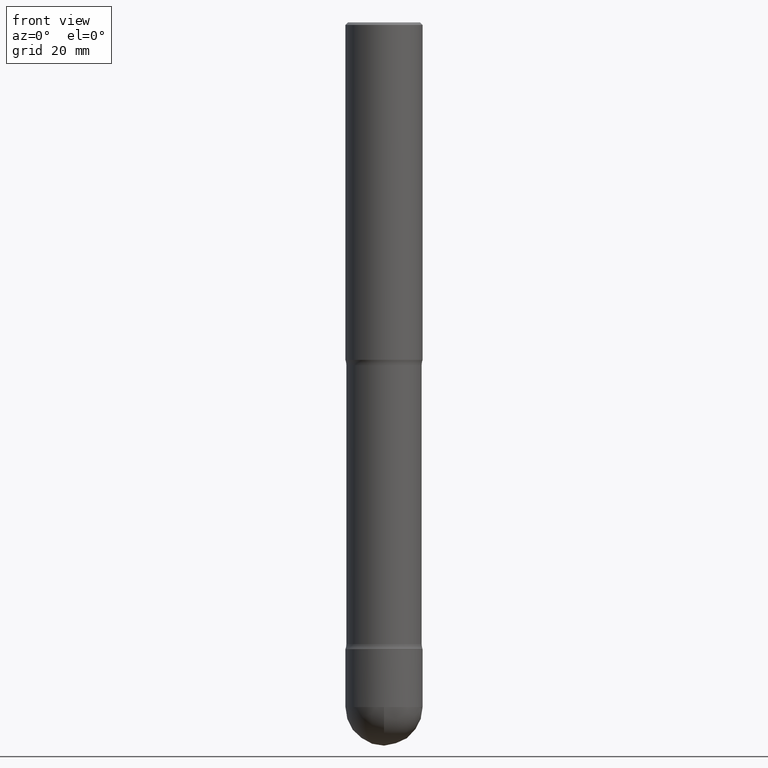
[diagram: clean part render]
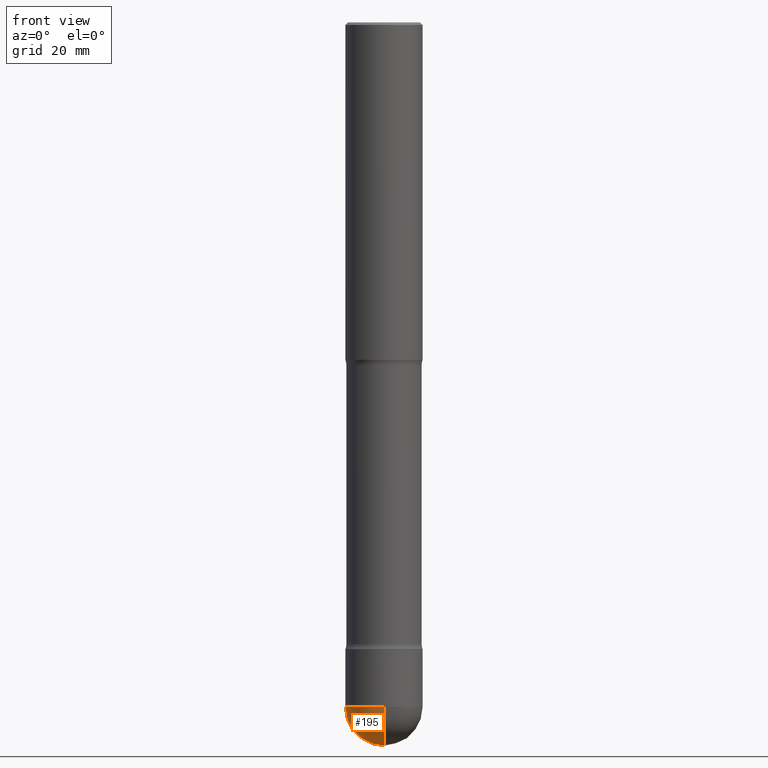
[diagram: same view with one face highlighted and labeled with its STEP entity id]
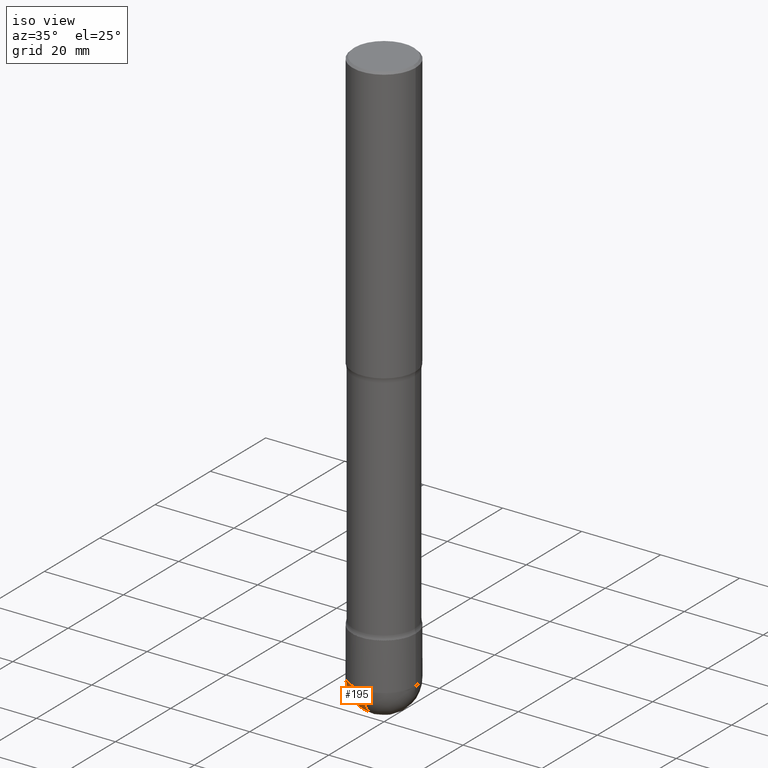
[diagram: same view with one face highlighted and labeled with its STEP entity id]
A machine part, front view. The second image highlights one B-rep face of the part: STEP entity #195.
A second angle (iso view) of the same face is appended — the face is thin or edge-on in the first view.
In plain terms, the highlighted spherical surface has radius 7.9997 mm.
Its self-contained STEP definition (entity closure, byte-faithful):
#65 = ORIENTED_EDGE ( 'NONE', *, *, #77, .F. ) ;
#71 = AXIS2_PLACEMENT_3D ( 'NONE', #320, #222, #279 ) ;
#77 = EDGE_CURVE ( 'NONE', #322, #370, #359, .T. ) ;
#89 = EDGE_LOOP ( 'NONE', ( #191, #435, #497, #65 ) ) ;
#114 = CIRCLE ( 'NONE', #445, 0.3149499999999997302 ) ;
#121 = VERTEX_POINT ( 'NONE', #164 ) ;
#123 = DIRECTION ( 'NONE',  ( 1.000000000000000000, -6.982962677686261977E-15, 0.000000000000000000 ) ) ;
#140 = EDGE_CURVE ( 'NONE', #121, #322, #114, .T. ) ;
#150 = CARTESIAN_POINT ( 'NONE',  ( 1.364458217214061005E-28, -1.955787124980869236E-14, -5.590549999999999464 ) ) ;
#164 = CARTESIAN_POINT ( 'NONE',  ( 1.442824930378747100E-28, -2.063822817200776423E-14, -5.905499999999998195 ) ) ;
#169 = CIRCLE ( 'NONE', #442, 0.3149499999999990085 ) ;
#191 = ORIENTED_EDGE ( 'NONE', *, *, #140, .F. ) ;
#195 = ADVANCED_FACE ( 'NONE', ( #414 ), #536, .T. ) ;
#198 = AXIS2_PLACEMENT_3D ( 'NONE', #150, #419, #551 ) ;
#222 = DIRECTION ( 'NONE',  ( -1.000000000000000000, 7.105427357601001070E-15, -4.926315508542082329E-29 ) ) ;
#255 = CARTESIAN_POINT ( 'NONE',  ( 2.199284095337421611E-15, 0.3149499999999798017, -5.590550000000000352 ) ) ;
#261 = CARTESIAN_POINT ( 'NONE',  ( 1.364458217214061005E-28, -1.955787124980869236E-14, -5.590549999999999464 ) ) ;
#265 = CARTESIAN_POINT ( 'NONE',  ( -0.3149499999999990085, -1.645667147332489546E-14, -5.590549999999999464 ) ) ;
#279 = DIRECTION ( 'NONE',  ( -7.105427357601000281E-15, -1.000000000000000000, 0.000000000000000000 ) ) ;
#317 = CIRCLE ( 'NONE', #71, 0.3149499999999997302 ) ;
#320 = CARTESIAN_POINT ( 'NONE',  ( 1.364458217214061005E-28, -1.955787124980869236E-14, -5.590549999999999464 ) ) ;
#322 = VERTEX_POINT ( 'NONE', #255 ) ;
#327 = EDGE_CURVE ( 'NONE', #370, #518, #169, .T. ) ;
#341 = CARTESIAN_POINT ( 'NONE',  ( -2.237854346276293990E-15, -0.3149500000000188815, -5.590549999999997688 ) ) ;
#359 = CIRCLE ( 'NONE', #523, 0.3149499999999990085 ) ;
#370 = VERTEX_POINT ( 'NONE', #265 ) ;
#414 = FACE_OUTER_BOUND ( 'NONE', #89, .T. ) ;
#419 = DIRECTION ( 'NONE',  ( -1.000000000000000000, 6.982962677686266711E-15, -4.883557194083112901E-29 ) ) ;
#426 = CARTESIAN_POINT ( 'NONE',  ( 1.367151563441831346E-28, -1.951930099886954466E-14, -5.590549999999999464 ) ) ;
#435 = ORIENTED_EDGE ( 'NONE', *, *, #492, .T. ) ;
#442 = AXIS2_PLACEMENT_3D ( 'NONE', #558, #467, #462 ) ;
#445 = AXIS2_PLACEMENT_3D ( 'NONE', #261, #559, #473 ) ;
#462 = DIRECTION ( 'NONE',  ( 1.000000000000000000, -6.982962677686261977E-15, 0.000000000000000000 ) ) ;
#467 = DIRECTION ( 'NONE',  ( -2.445468806185136597E-29, 3.491481338843145583E-15, 1.000000000000000000 ) ) ;
#473 = DIRECTION ( 'NONE',  ( 6.982962677686266711E-15, 1.000000000000000000, 0.000000000000000000 ) ) ;
#492 = EDGE_CURVE ( 'NONE', #121, #518, #317, .T. ) ;
#497 = ORIENTED_EDGE ( 'NONE', *, *, #327, .F. ) ;
#501 = DIRECTION ( 'NONE',  ( -2.445468806185136597E-29, 3.491481338843145583E-15, 1.000000000000000000 ) ) ;
#518 = VERTEX_POINT ( 'NONE', #341 ) ;
#523 = AXIS2_PLACEMENT_3D ( 'NONE', #426, #501, #123 ) ;
#536 = SPHERICAL_SURFACE ( 'NONE', #198, 0.3149499999999997302 ) ;
#551 = DIRECTION ( 'NONE',  ( 6.982962677686266711E-15, 1.000000000000000000, -3.469564049740295925E-15 ) ) ;
#558 = CARTESIAN_POINT ( 'NONE',  ( 1.367151563441831346E-28, -1.951930099886954466E-14, -5.590549999999999464 ) ) ;
#559 = DIRECTION ( 'NONE',  ( 1.000000000000000000, -6.982962677686265922E-15, 4.883557194083112340E-29 ) ) ;